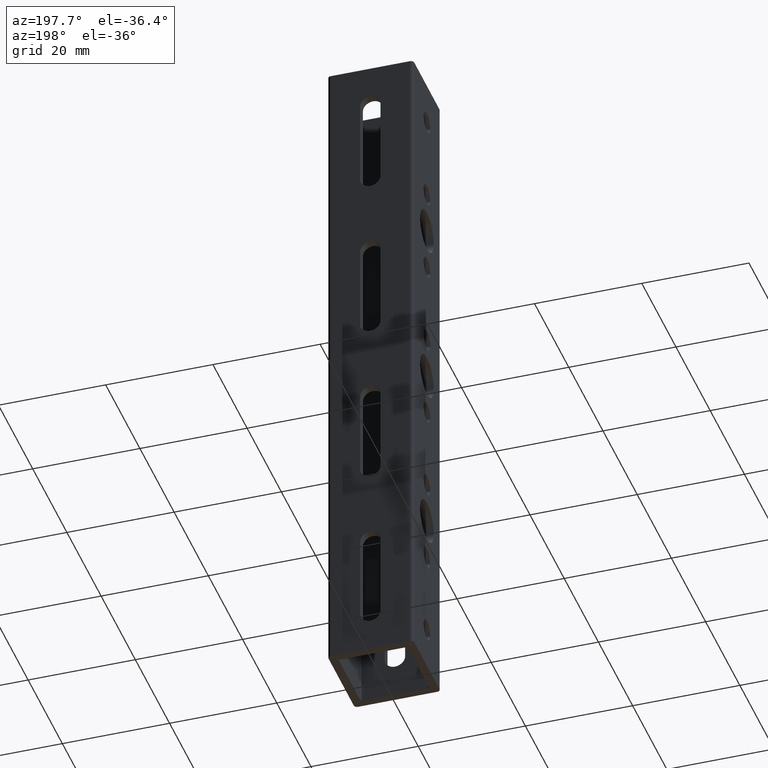
[diagram: clean part render]
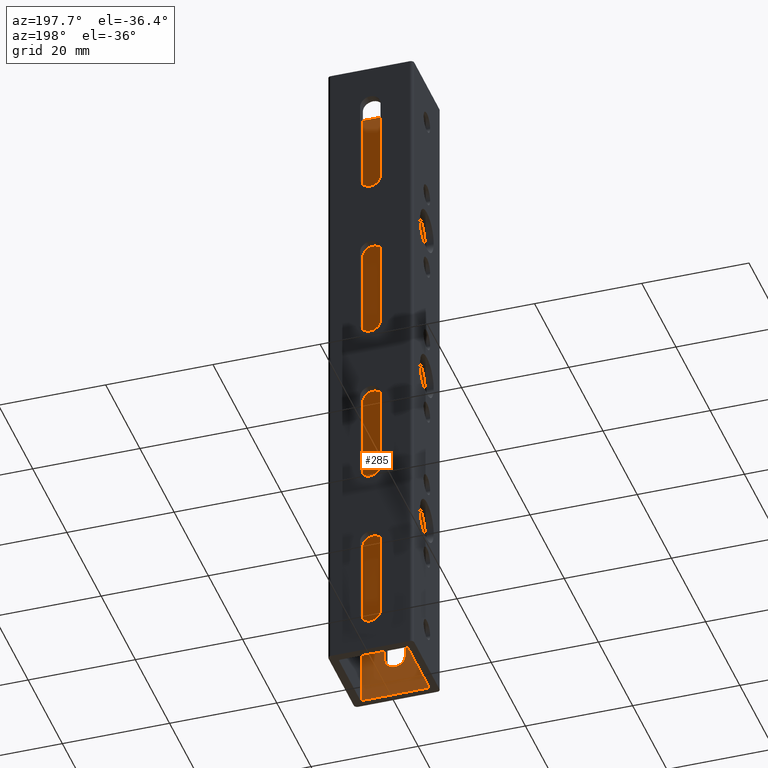
[diagram: same view with one face highlighted and labeled with its STEP entity id]
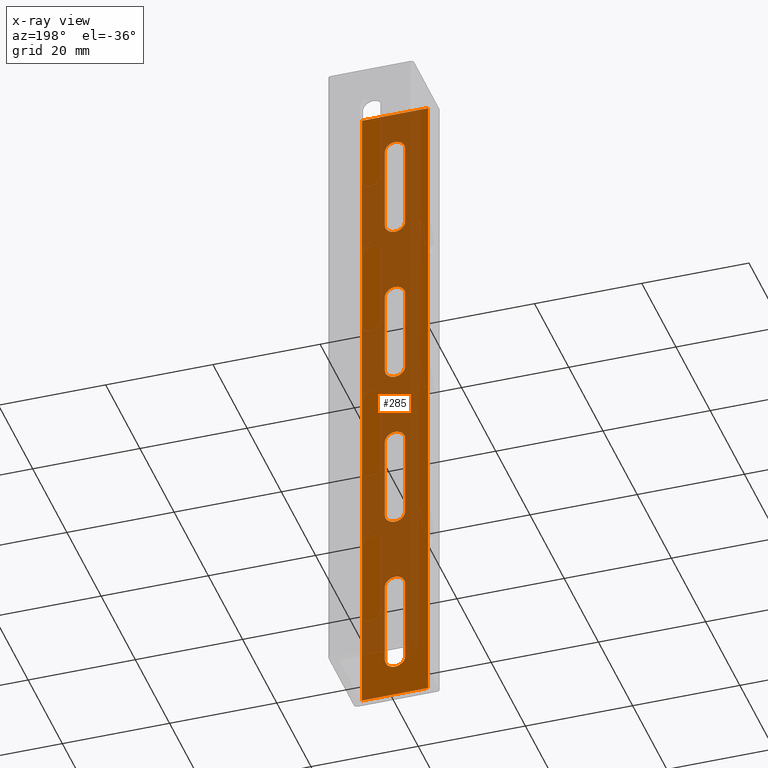
[diagram: x-ray of the same camera — body ghosted, the highlighted face saturated]
A machine part, auxiliary view. The second image highlights one B-rep face of the part: STEP entity #285.
The next image is the same camera in x-ray: the body ghosted, the highlighted face saturated — about 61% of this face is hidden behind the body in this view.
In plain terms, the highlighted planar face has unit normal (0, 1, -0).
Its self-contained STEP definition (entity closure, byte-faithful):
#5 = AXIS2_PLACEMENT_3D ( 'NONE', #1444, #3411, #1729 ) ;
#48 = DIRECTION ( 'NONE',  ( 1.000000000000000000, -0.0000000000000000000, 0.0000000000000000000 ) ) ;
#71 = DIRECTION ( 'NONE',  ( -1.219727443741261000E-016, 0.0000000000000000000, -1.000000000000000000 ) ) ;
#74 = EDGE_CURVE ( 'NONE', #2410, #3428, #3169, .T. ) ;
#104 = VECTOR ( 'NONE', #2330, 39.37007874015748100 ) ;
#105 = VERTEX_POINT ( 'NONE', #3041 ) ;
#111 = FACE_BOUND ( 'NONE', #3371, .T. ) ;
#126 = AXIS2_PLACEMENT_3D ( 'NONE', #732, #1568, #1763 ) ;
#150 = DIRECTION ( 'NONE',  ( 0.0000000000000000000, 0.0000000000000000000, 1.000000000000000000 ) ) ;
#170 = DIRECTION ( 'NONE',  ( 0.0000000000000000000, 0.0000000000000000000, 1.000000000000000000 ) ) ;
#180 = CARTESIAN_POINT ( 'NONE',  ( 7.714310548702964800E-017, -0.2524606299212598400, 2.834645670000000500 ) ) ;
#216 = VERTEX_POINT ( 'NONE', #1892 ) ;
#218 = VERTEX_POINT ( 'NONE', #1065 ) ;
#220 = CARTESIAN_POINT ( 'NONE',  ( 7.714310548702964800E-017, -0.2524606299212598400, 4.724409450000000500 ) ) ;
#235 = CIRCLE ( 'NONE', #126, 0.07500000000000002500 ) ;
#265 = DIRECTION ( 'NONE',  ( 0.0000000000000000000, 0.0000000000000000000, 1.000000000000000000 ) ) ;
#268 = VERTEX_POINT ( 'NONE', #3336 ) ;
#285 = ADVANCED_FACE ( 'NONE', ( #3123, #873, #1702, #111, #3028 ), #1387, .T. ) ;
#299 = ORIENTED_EDGE ( 'NONE', *, *, #3345, .F. ) ;
#329 = VECTOR ( 'NONE', #1639, 39.37007874015748100 ) ;
#332 = EDGE_CURVE ( 'NONE', #3428, #3553, #2095, .T. ) ;
#352 = CARTESIAN_POINT ( 'NONE',  ( 0.2524606299212600000, -0.2524606299212598400, 5.039370078740157400 ) ) ;
#366 = VERTEX_POINT ( 'NONE', #3029 ) ;
#400 = DIRECTION ( 'NONE',  ( 1.219727443741261000E-016, 0.0000000000000000000, 1.000000000000000000 ) ) ;
#416 = EDGE_CURVE ( 'NONE', #216, #3308, #1831, .T. ) ;
#446 = AXIS2_PLACEMENT_3D ( 'NONE', #1873, #3558, #3275 ) ;
#460 = DIRECTION ( 'NONE',  ( 0.0000000000000000000, 1.000000000000000000, -0.0000000000000000000 ) ) ;
#482 = ORIENTED_EDGE ( 'NONE', *, *, #3597, .F. ) ;
#483 = EDGE_LOOP ( 'NONE', ( #3073, #1499, #3023, #3287, #482 ) ) ;
#484 = DIRECTION ( 'NONE',  ( 0.0000000000000000000, 0.0000000000000000000, 1.000000000000000000 ) ) ;
#495 = ORIENTED_EDGE ( 'NONE', *, *, #1333, .F. ) ;
#514 = ORIENTED_EDGE ( 'NONE', *, *, #1844, .T. ) ;
#517 = DIRECTION ( 'NONE',  ( 0.0000000000000000000, 0.0000000000000000000, 1.000000000000000000 ) ) ;
#527 = EDGE_CURVE ( 'NONE', #105, #3182, #1560, .T. ) ;
#548 = EDGE_CURVE ( 'NONE', #1404, #268, #866, .T. ) ;
#585 = ORIENTED_EDGE ( 'NONE', *, *, #1213, .T. ) ;
#599 = EDGE_CURVE ( 'NONE', #218, #216, #2255, .T. ) ;
#686 = CARTESIAN_POINT ( 'NONE',  ( -0.07499999999999969200, -0.2524606299212598400, 3.464566930000000600 ) ) ;
#713 = CIRCLE ( 'NONE', #2835, 0.07499999999999960900 ) ;
#732 = CARTESIAN_POINT ( 'NONE',  ( 7.714310548702964800E-017, -0.2524606299212598400, 0.9448818900000001100 ) ) ;
#761 = EDGE_CURVE ( 'NONE', #1588, #2504, #235, .T. ) ;
#848 = CARTESIAN_POINT ( 'NONE',  ( 0.07500000000000006700, -0.2524606299212598400, 1.574803150000000400 ) ) ;
#857 = VECTOR ( 'NONE', #1312, 39.37007874015748100 ) ;
#866 = LINE ( 'NONE', #2365, #104 ) ;
#873 = FACE_BOUND ( 'NONE', #483, .T. ) ;
#887 = CARTESIAN_POINT ( 'NONE',  ( 0.07500000000000173200, -0.2524606299212598400, 17.63779527559055200 ) ) ;
#888 = VERTEX_POINT ( 'NONE', #2668 ) ;
#893 = CIRCLE ( 'NONE', #2083, 0.07499999999999988600 ) ;
#967 = EDGE_CURVE ( 'NONE', #3553, #888, #2525, .T. ) ;
#1055 = EDGE_CURVE ( 'NONE', #3308, #3082, #3014, .T. ) ;
#1058 = DIRECTION ( 'NONE',  ( 0.0000000000000000000, 1.000000000000000000, -0.0000000000000000000 ) ) ;
#1064 = EDGE_LOOP ( 'NONE', ( #1140, #2810, #514, #585 ) ) ;
#1065 = CARTESIAN_POINT ( 'NONE',  ( 7.714310548702964800E-017, -0.2524606299212598400, 4.799409450000000600 ) ) ;
#1081 = VECTOR ( 'NONE', #3007, 39.37007874015748100 ) ;
#1089 = DIRECTION ( 'NONE',  ( -1.219727443741261000E-016, 0.0000000000000000000, -1.000000000000000000 ) ) ;
#1110 = CARTESIAN_POINT ( 'NONE',  ( 0.2524606299212600000, -0.2524606299212598400, 17.63779527559055200 ) ) ;
#1140 = ORIENTED_EDGE ( 'NONE', *, *, #1360, .F. ) ;
#1152 = VERTEX_POINT ( 'NONE', #1202 ) ;
#1170 = DIRECTION ( 'NONE',  ( 0.0000000000000000000, 1.000000000000000000, -0.0000000000000000000 ) ) ;
#1173 = VERTEX_POINT ( 'NONE', #1615 ) ;
#1174 = CARTESIAN_POINT ( 'NONE',  ( 0.07500000000000006700, -0.2524606299212598400, 2.834645670000000500 ) ) ;
#1202 = CARTESIAN_POINT ( 'NONE',  ( 0.07499999999999999700, -0.2524606299212598400, 0.3149606300000000700 ) ) ;
#1213 = EDGE_CURVE ( 'NONE', #2281, #1537, #3317, .T. ) ;
#1215 = AXIS2_PLACEMENT_3D ( 'NONE', #220, #2178, #517 ) ;
#1218 = ORIENTED_EDGE ( 'NONE', *, *, #2155, .F. ) ;
#1276 = CARTESIAN_POINT ( 'NONE',  ( 7.714310548702964800E-017, -0.2524606299212598400, 2.204724410000000300 ) ) ;
#1290 = AXIS2_PLACEMENT_3D ( 'NONE', #1276, #1842, #150 ) ;
#1297 = VECTOR ( 'NONE', #48, 39.37007874015748100 ) ;
#1312 = DIRECTION ( 'NONE',  ( 1.219727443741261000E-016, 0.0000000000000000000, 1.000000000000000000 ) ) ;
#1323 = CARTESIAN_POINT ( 'NONE',  ( 7.714310548702964800E-017, -0.2524606299212598400, 0.9448818900000001100 ) ) ;
#1333 = EDGE_CURVE ( 'NONE', #2504, #1152, #1469, .T. ) ;
#1350 = CARTESIAN_POINT ( 'NONE',  ( -0.07499999999999998300, -0.2524606299212598400, 0.9448818900000001100 ) ) ;
#1360 = EDGE_CURVE ( 'NONE', #1404, #1537, #2121, .T. ) ;
#1382 = CARTESIAN_POINT ( 'NONE',  ( 0.07500000000000013600, -0.2524606299212598400, 0.9448818900000001100 ) ) ;
#1387 = PLANE ( 'NONE',  #2154 ) ;
#1404 = VERTEX_POINT ( 'NONE', #2455 ) ;
#1405 = VERTEX_POINT ( 'NONE', #1350 ) ;
#1444 = CARTESIAN_POINT ( 'NONE',  ( 7.714310548702964800E-017, -0.2524606299212598400, 3.464566930000000600 ) ) ;
#1467 = CARTESIAN_POINT ( 'NONE',  ( 0.07500000000000189800, -0.2524606299212598400, 17.63779527559055200 ) ) ;
#1469 = LINE ( 'NONE', #3495, #3617 ) ;
#1499 = ORIENTED_EDGE ( 'NONE', *, *, #332, .F. ) ;
#1512 = AXIS2_PLACEMENT_3D ( 'NONE', #2848, #1170, #3145 ) ;
#1520 = VECTOR ( 'NONE', #1745, 39.37007874015748100 ) ;
#1537 = VERTEX_POINT ( 'NONE', #2196 ) ;
#1560 = CIRCLE ( 'NONE', #5, 0.07499999999999960900 ) ;
#1564 = ORIENTED_EDGE ( 'NONE', *, *, #416, .F. ) ;
#1568 = DIRECTION ( 'NONE',  ( 0.0000000000000000000, 1.000000000000000000, -0.0000000000000000000 ) ) ;
#1570 = DIRECTION ( 'NONE',  ( 1.000000000000000000, -0.0000000000000000000, -0.0000000000000000000 ) ) ;
#1578 = AXIS2_PLACEMENT_3D ( 'NONE', #2731, #1058, #3019 ) ;
#1588 = VERTEX_POINT ( 'NONE', #3025 ) ;
#1601 = CARTESIAN_POINT ( 'NONE',  ( 0.2424606299212600000, -0.2524606299212598400, 0.0000000000000000000 ) ) ;
#1605 = DIRECTION ( 'NONE',  ( 0.0000000000000000000, 0.0000000000000000000, 1.000000000000000000 ) ) ;
#1615 = CARTESIAN_POINT ( 'NONE',  ( -0.07500000000000001100, -0.2524606299212598400, 0.3149606299999985200 ) ) ;
#1639 = DIRECTION ( 'NONE',  ( 2.710505430536134800E-017, 0.0000000000000000000, 1.000000000000000000 ) ) ;
#1651 = LINE ( 'NONE', #1467, #2297 ) ;
#1702 = FACE_BOUND ( 'NONE', #2353, .T. ) ;
#1729 = DIRECTION ( 'NONE',  ( 0.0000000000000000000, 0.0000000000000000000, 1.000000000000000000 ) ) ;
#1745 = DIRECTION ( 'NONE',  ( -1.219727443741261000E-016, 0.0000000000000000000, -1.000000000000000000 ) ) ;
#1749 = VECTOR ( 'NONE', #1089, 39.37007874015748100 ) ;
#1763 = DIRECTION ( 'NONE',  ( 0.0000000000000000000, 0.0000000000000000000, 1.000000000000000000 ) ) ;
#1820 = LINE ( 'NONE', #1910, #329 ) ;
#1831 = LINE ( 'NONE', #887, #1749 ) ;
#1842 = DIRECTION ( 'NONE',  ( 0.0000000000000000000, 1.000000000000000000, -0.0000000000000000000 ) ) ;
#1844 = EDGE_CURVE ( 'NONE', #268, #2281, #3537, .T. ) ;
#1849 = ORIENTED_EDGE ( 'NONE', *, *, #2708, .F. ) ;
#1863 = DIRECTION ( 'NONE',  ( 0.0000000000000000000, 1.000000000000000000, -0.0000000000000000000 ) ) ;
#1868 = EDGE_CURVE ( 'NONE', #366, #1975, #2788, .T. ) ;
#1873 = CARTESIAN_POINT ( 'NONE',  ( 7.714310548702964800E-017, -0.2524606299212598400, 4.094488190000000700 ) ) ;
#1892 = CARTESIAN_POINT ( 'NONE',  ( 0.07500000000000015000, -0.2524606299212598400, 4.724409450000000500 ) ) ;
#1910 = CARTESIAN_POINT ( 'NONE',  ( -0.07499999999999953900, -0.2524606299212598400, 17.63779527559055200 ) ) ;
#1975 = VERTEX_POINT ( 'NONE', #686 ) ;
#1996 = EDGE_CURVE ( 'NONE', #3082, #2762, #2346, .T. ) ;
#1997 = CIRCLE ( 'NONE', #1512, 0.07500000000000002500 ) ;
#2079 = EDGE_CURVE ( 'NONE', #1975, #105, #2827, .T. ) ;
#2083 = AXIS2_PLACEMENT_3D ( 'NONE', #3545, #1863, #170 ) ;
#2090 = AXIS2_PLACEMENT_3D ( 'NONE', #2871, #2575, #2586 ) ;
#2095 = LINE ( 'NONE', #3423, #1520 ) ;
#2121 = LINE ( 'NONE', #3544, #3532 ) ;
#2129 = DIRECTION ( 'NONE',  ( 0.0000000000000000000, 0.0000000000000000000, 1.000000000000000000 ) ) ;
#2149 = DIRECTION ( 'NONE',  ( 0.0000000000000000000, 1.000000000000000000, -0.0000000000000000000 ) ) ;
#2154 = AXIS2_PLACEMENT_3D ( 'NONE', #1110, #3627, #265 ) ;
#2155 = EDGE_CURVE ( 'NONE', #1173, #1405, #1820, .T. ) ;
#2178 = DIRECTION ( 'NONE',  ( 0.0000000000000000000, 1.000000000000000000, -0.0000000000000000000 ) ) ;
#2196 = CARTESIAN_POINT ( 'NONE',  ( 0.2424606299212600000, -0.2524606299212598400, 0.0000000000000000000 ) ) ;
#2255 = CIRCLE ( 'NONE', #2090, 0.07499999999999960900 ) ;
#2261 = VERTEX_POINT ( 'NONE', #3097 ) ;
#2271 = EDGE_LOOP ( 'NONE', ( #2761, #495, #2897, #2986, #1218 ) ) ;
#2281 = VERTEX_POINT ( 'NONE', #2542 ) ;
#2290 = CIRCLE ( 'NONE', #1215, 0.07499999999999960900 ) ;
#2297 = VECTOR ( 'NONE', #71, 39.37007874015748100 ) ;
#2330 = DIRECTION ( 'NONE',  ( -0.0000000000000000000, 0.0000000000000000000, 1.000000000000000000 ) ) ;
#2336 = CARTESIAN_POINT ( 'NONE',  ( -0.07499999999999953900, -0.2524606299212598400, 4.724409450000000500 ) ) ;
#2339 = EDGE_CURVE ( 'NONE', #1152, #1173, #1997, .T. ) ;
#2346 = LINE ( 'NONE', #2994, #857 ) ;
#2353 = EDGE_LOOP ( 'NONE', ( #299, #1849, #3476, #2896, #2508 ) ) ;
#2365 = CARTESIAN_POINT ( 'NONE',  ( -0.2424606299212599100, -0.2524606299212598400, 5.039370078740157400 ) ) ;
#2370 = DIRECTION ( 'NONE',  ( -2.168404344428907800E-016, 0.0000000000000000000, -1.000000000000000000 ) ) ;
#2373 = CARTESIAN_POINT ( 'NONE',  ( -0.07499999999999769400, -0.2524606299212598400, 17.63779527559055200 ) ) ;
#2400 = CARTESIAN_POINT ( 'NONE',  ( 0.07500000000000006700, -0.2524606299212598400, 4.094488190000000700 ) ) ;
#2410 = VERTEX_POINT ( 'NONE', #2747 ) ;
#2421 = CARTESIAN_POINT ( 'NONE',  ( 7.714310549605790200E-017, -0.2524606299212598400, 1.574803150000000400 ) ) ;
#2455 = CARTESIAN_POINT ( 'NONE',  ( -0.2424606299212599400, -0.2524606299212598400, 0.0000000000000000000 ) ) ;
#2491 = CARTESIAN_POINT ( 'NONE',  ( 0.07500000000000015000, -0.2524606299212598400, 2.204724410000000300 ) ) ;
#2504 = VERTEX_POINT ( 'NONE', #1382 ) ;
#2508 = ORIENTED_EDGE ( 'NONE', *, *, #1868, .F. ) ;
#2525 = CIRCLE ( 'NONE', #2957, 0.07499999999999988600 ) ;
#2542 = CARTESIAN_POINT ( 'NONE',  ( 0.2424606299212600000, -0.2524606299212598400, 5.039370078740157400 ) ) ;
#2546 = CARTESIAN_POINT ( 'NONE',  ( -0.07499999999999776300, -0.2524606299212598400, 17.63779527559055200 ) ) ;
#2571 = CARTESIAN_POINT ( 'NONE',  ( -0.07499999999999913700, -0.2524606299212598400, 4.094488189999999000 ) ) ;
#2575 = DIRECTION ( 'NONE',  ( 0.0000000000000000000, 1.000000000000000000, -0.0000000000000000000 ) ) ;
#2586 = DIRECTION ( 'NONE',  ( 0.0000000000000000000, 0.0000000000000000000, 1.000000000000000000 ) ) ;
#2636 = VERTEX_POINT ( 'NONE', #1174 ) ;
#2668 = CARTESIAN_POINT ( 'NONE',  ( -0.07499999999999972000, -0.2524606299212598400, 1.574803149999999300 ) ) ;
#2708 = EDGE_CURVE ( 'NONE', #3182, #2636, #1651, .T. ) ;
#2731 = CARTESIAN_POINT ( 'NONE',  ( 7.714310548702964800E-017, -0.2524606299212598400, 3.464566930000000600 ) ) ;
#2747 = CARTESIAN_POINT ( 'NONE',  ( 7.714310548702964800E-017, -0.2524606299212598400, 2.279724410000000000 ) ) ;
#2761 = ORIENTED_EDGE ( 'NONE', *, *, #2339, .F. ) ;
#2762 = VERTEX_POINT ( 'NONE', #2336 ) ;
#2788 = LINE ( 'NONE', #2373, #3445 ) ;
#2810 = ORIENTED_EDGE ( 'NONE', *, *, #548, .T. ) ;
#2827 = CIRCLE ( 'NONE', #1578, 0.07499999999999960900 ) ;
#2828 = DIRECTION ( 'NONE',  ( 1.219727443741261000E-016, 0.0000000000000000000, 1.000000000000000000 ) ) ;
#2835 = AXIS2_PLACEMENT_3D ( 'NONE', #180, #2149, #484 ) ;
#2848 = CARTESIAN_POINT ( 'NONE',  ( 4.917269377497341900E-018, -0.2524606299212598400, 0.3149606300000000700 ) ) ;
#2871 = CARTESIAN_POINT ( 'NONE',  ( 7.714310548702964800E-017, -0.2524606299212598400, 4.724409450000000500 ) ) ;
#2896 = ORIENTED_EDGE ( 'NONE', *, *, #2079, .F. ) ;
#2897 = ORIENTED_EDGE ( 'NONE', *, *, #761, .F. ) ;
#2903 = ORIENTED_EDGE ( 'NONE', *, *, #1996, .F. ) ;
#2919 = CARTESIAN_POINT ( 'NONE',  ( 0.07500000000000015000, -0.2524606299212598400, 3.464566930000000600 ) ) ;
#2933 = ORIENTED_EDGE ( 'NONE', *, *, #1055, .F. ) ;
#2957 = AXIS2_PLACEMENT_3D ( 'NONE', #2421, #460, #2129 ) ;
#2986 = ORIENTED_EDGE ( 'NONE', *, *, #3363, .F. ) ;
#2994 = CARTESIAN_POINT ( 'NONE',  ( -0.07499999999999749900, -0.2524606299212598400, 17.63779527559055200 ) ) ;
#2999 = LINE ( 'NONE', #2546, #3564 ) ;
#3007 = DIRECTION ( 'NONE',  ( 0.0000000000000000000, 0.0000000000000000000, -1.000000000000000000 ) ) ;
#3009 = EDGE_CURVE ( 'NONE', #2762, #218, #2290, .T. ) ;
#3014 = CIRCLE ( 'NONE', #446, 0.07499999999999960900 ) ;
#3018 = ORIENTED_EDGE ( 'NONE', *, *, #599, .F. ) ;
#3019 = DIRECTION ( 'NONE',  ( 0.0000000000000000000, 0.0000000000000000000, 1.000000000000000000 ) ) ;
#3023 = ORIENTED_EDGE ( 'NONE', *, *, #74, .F. ) ;
#3025 = CARTESIAN_POINT ( 'NONE',  ( 7.714310548702964800E-017, -0.2524606299212598400, 1.019881890000000200 ) ) ;
#3028 = FACE_OUTER_BOUND ( 'NONE', #1064, .T. ) ;
#3029 = CARTESIAN_POINT ( 'NONE',  ( -0.07499999999999949800, -0.2524606299212598400, 2.834645670000000000 ) ) ;
#3041 = CARTESIAN_POINT ( 'NONE',  ( 7.714310548702964800E-017, -0.2524606299212598400, 3.539566929999999900 ) ) ;
#3073 = ORIENTED_EDGE ( 'NONE', *, *, #967, .F. ) ;
#3082 = VERTEX_POINT ( 'NONE', #2571 ) ;
#3097 = CARTESIAN_POINT ( 'NONE',  ( -0.07499999999999984500, -0.2524606299212598400, 2.204724410000000300 ) ) ;
#3123 = FACE_BOUND ( 'NONE', #2271, .T. ) ;
#3145 = DIRECTION ( 'NONE',  ( 0.0000000000000000000, 0.0000000000000000000, 1.000000000000000000 ) ) ;
#3160 = ORIENTED_EDGE ( 'NONE', *, *, #3009, .F. ) ;
#3169 = CIRCLE ( 'NONE', #1290, 0.07499999999999988600 ) ;
#3182 = VERTEX_POINT ( 'NONE', #2919 ) ;
#3223 = AXIS2_PLACEMENT_3D ( 'NONE', #1323, #3293, #1605 ) ;
#3275 = DIRECTION ( 'NONE',  ( 0.0000000000000000000, 0.0000000000000000000, 1.000000000000000000 ) ) ;
#3287 = ORIENTED_EDGE ( 'NONE', *, *, #3337, .F. ) ;
#3293 = DIRECTION ( 'NONE',  ( 0.0000000000000000000, 1.000000000000000000, -0.0000000000000000000 ) ) ;
#3308 = VERTEX_POINT ( 'NONE', #2400 ) ;
#3317 = LINE ( 'NONE', #1601, #1081 ) ;
#3336 = CARTESIAN_POINT ( 'NONE',  ( -0.2424606299212599400, -0.2524606299212598400, 5.039370078740157400 ) ) ;
#3337 = EDGE_CURVE ( 'NONE', #2261, #2410, #893, .T. ) ;
#3345 = EDGE_CURVE ( 'NONE', #2636, #366, #713, .T. ) ;
#3363 = EDGE_CURVE ( 'NONE', #1405, #1588, #3607, .T. ) ;
#3371 = EDGE_LOOP ( 'NONE', ( #2933, #1564, #3018, #3160, #2903 ) ) ;
#3411 = DIRECTION ( 'NONE',  ( 0.0000000000000000000, 1.000000000000000000, -0.0000000000000000000 ) ) ;
#3423 = CARTESIAN_POINT ( 'NONE',  ( 0.07500000000000203700, -0.2524606299212598400, 17.63779527559055200 ) ) ;
#3428 = VERTEX_POINT ( 'NONE', #2491 ) ;
#3445 = VECTOR ( 'NONE', #400, 39.37007874015748100 ) ;
#3476 = ORIENTED_EDGE ( 'NONE', *, *, #527, .F. ) ;
#3495 = CARTESIAN_POINT ( 'NONE',  ( 0.07500000000000377200, -0.2524606299212598400, 17.63779527559055200 ) ) ;
#3532 = VECTOR ( 'NONE', #1570, 39.37007874015748100 ) ;
#3537 = LINE ( 'NONE', #352, #1297 ) ;
#3544 = CARTESIAN_POINT ( 'NONE',  ( 0.2524606299212600000, -0.2524606299212598400, 0.0000000000000000000 ) ) ;
#3545 = CARTESIAN_POINT ( 'NONE',  ( 7.714310548702964800E-017, -0.2524606299212598400, 2.204724410000000300 ) ) ;
#3553 = VERTEX_POINT ( 'NONE', #848 ) ;
#3558 = DIRECTION ( 'NONE',  ( 0.0000000000000000000, 1.000000000000000000, -0.0000000000000000000 ) ) ;
#3564 = VECTOR ( 'NONE', #2828, 39.37007874015748100 ) ;
#3597 = EDGE_CURVE ( 'NONE', #888, #2261, #2999, .T. ) ;
#3607 = CIRCLE ( 'NONE', #3223, 0.07500000000000002500 ) ;
#3617 = VECTOR ( 'NONE', #2370, 39.37007874015748100 ) ;
#3627 = DIRECTION ( 'NONE',  ( 0.0000000000000000000, 1.000000000000000000, -0.0000000000000000000 ) ) ;